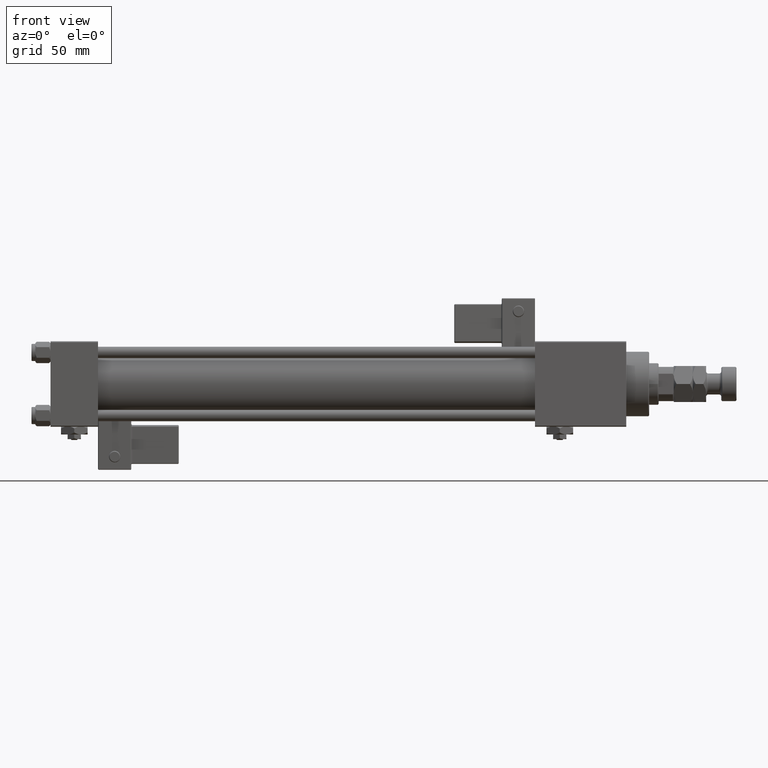
[diagram: clean part render]
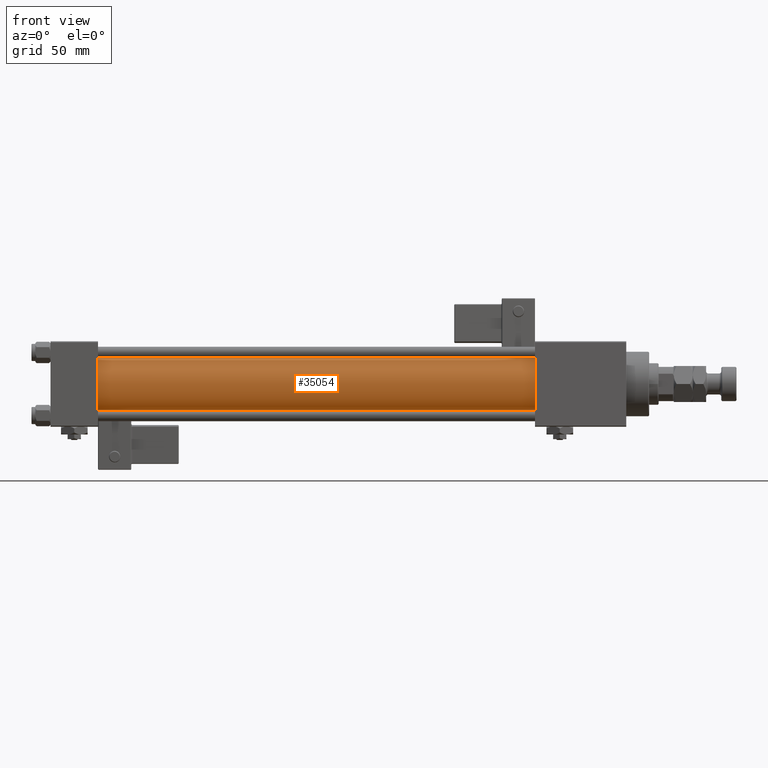
[diagram: same view with one face highlighted and labeled with its STEP entity id]
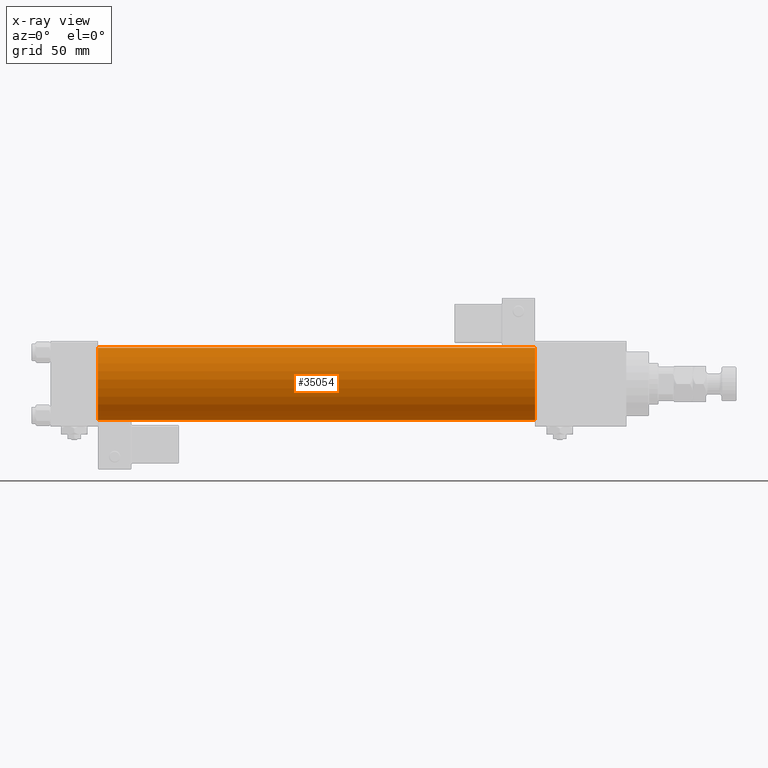
[diagram: x-ray of the same camera — body ghosted, the highlighted face saturated]
A machine part, front view. The second image highlights one B-rep face of the part: STEP entity #35054.
The next image is the same camera in x-ray: the body ghosted, the highlighted face saturated — about 0% of this face is hidden behind the body in this view.
In plain terms, the highlighted cylindrical surface (edge-blend (fillet) strip) has radius 19 mm, axis along (-1, -0, -0).
Its self-contained STEP definition (entity closure, byte-faithful):
#394 = LINE ( 'NONE', #49041, #34152 ) ;
#1388 = EDGE_CURVE ( 'NONE', #49354, #46026, #27298, .T. ) ;
#1842 = CARTESIAN_POINT ( 'NONE',  ( 24.99999999999999289, -2.602085213965210642E-15, 19.00000000000000000 ) ) ;
#3463 = CARTESIAN_POINT ( 'NONE',  ( 24.99999999999999289, -2.602085213965210642E-15, 0.000000000000000000 ) ) ;
#4861 = VERTEX_POINT ( 'NONE', #35019 ) ;
#5752 = CARTESIAN_POINT ( 'NONE',  ( 255.0000000000000000, -2.602085213965210642E-15, 19.00000000000000000 ) ) ;
#9652 = DIRECTION ( 'NONE',  ( -1.000000000000000000, -0.000000000000000000, -0.000000000000000000 ) ) ;
#10918 = EDGE_CURVE ( 'NONE', #46026, #4861, #44367, .T. ) ;
#14045 = EDGE_LOOP ( 'NONE', ( #48162, #55475, #14388, #16747 ) ) ;
#14340 = CIRCLE ( 'NONE', #32541, 19.00000000000000000 ) ;
#14388 = ORIENTED_EDGE ( 'NONE', *, *, #1388, .T. ) ;
#16747 = ORIENTED_EDGE ( 'NONE', *, *, #10918, .T. ) ;
#17511 = DIRECTION ( 'NONE',  ( -1.000000000000000000, -0.000000000000000000, -0.000000000000000000 ) ) ;
#18968 = CARTESIAN_POINT ( 'NONE',  ( 255.0000000000000000, -2.602085213965210642E-15, 0.000000000000000000 ) ) ;
#19252 = DIRECTION ( 'NONE',  ( 0.000000000000000000, 0.000000000000000000, -1.000000000000000000 ) ) ;
#19853 = CARTESIAN_POINT ( 'NONE',  ( 255.0000000000000000, -2.752562955852396712E-16, -19.00000000000000000 ) ) ;
#21657 = AXIS2_PLACEMENT_3D ( 'NONE', #3463, #47016, #33367 ) ;
#23051 = CARTESIAN_POINT ( 'NONE',  ( 255.0000000000000000, -2.602085213965210642E-15, 19.00000000000000000 ) ) ;
#27298 = LINE ( 'NONE', #23051, #51552 ) ;
#27596 = EDGE_CURVE ( 'NONE', #49354, #42932, #14340, .T. ) ;
#29916 = CARTESIAN_POINT ( 'NONE',  ( 255.0000000000000000, -2.602085213965210642E-15, 0.000000000000000000 ) ) ;
#30760 = CYLINDRICAL_SURFACE ( 'NONE', #49188, 19.00000000000000000 ) ;
#32541 = AXIS2_PLACEMENT_3D ( 'NONE', #18968, #40564, #19252 ) ;
#33367 = DIRECTION ( 'NONE',  ( 0.000000000000000000, 0.000000000000000000, 1.000000000000000000 ) ) ;
#34152 = VECTOR ( 'NONE', #17511, 1000.000000000000000 ) ;
#35019 = CARTESIAN_POINT ( 'NONE',  ( 24.99999999999999289, -2.752562955852396712E-16, -19.00000000000000000 ) ) ;
#35024 = FACE_OUTER_BOUND ( 'NONE', #14045, .T. ) ;
#35054 = ADVANCED_FACE ( 'NONE', ( #35024 ), #30760, .T. ) ;
#40564 = DIRECTION ( 'NONE',  ( 1.000000000000000000, 0.000000000000000000, 0.000000000000000000 ) ) ;
#42932 = VERTEX_POINT ( 'NONE', #19853 ) ;
#44367 = CIRCLE ( 'NONE', #21657, 19.00000000000000000 ) ;
#46026 = VERTEX_POINT ( 'NONE', #1842 ) ;
#47016 = DIRECTION ( 'NONE',  ( 1.000000000000000000, -0.000000000000000000, 0.000000000000000000 ) ) ;
#47266 = DIRECTION ( 'NONE',  ( 0.000000000000000000, 0.000000000000000000, 1.000000000000000000 ) ) ;
#47555 = DIRECTION ( 'NONE',  ( -1.000000000000000000, -0.000000000000000000, -0.000000000000000000 ) ) ;
#48162 = ORIENTED_EDGE ( 'NONE', *, *, #51602, .F. ) ;
#49041 = CARTESIAN_POINT ( 'NONE',  ( 255.0000000000000000, -2.752562955852396712E-16, -19.00000000000000000 ) ) ;
#49188 = AXIS2_PLACEMENT_3D ( 'NONE', #29916, #47555, #47266 ) ;
#49354 = VERTEX_POINT ( 'NONE', #5752 ) ;
#51552 = VECTOR ( 'NONE', #9652, 1000.000000000000000 ) ;
#51602 = EDGE_CURVE ( 'NONE', #42932, #4861, #394, .T. ) ;
#55475 = ORIENTED_EDGE ( 'NONE', *, *, #27596, .F. ) ;